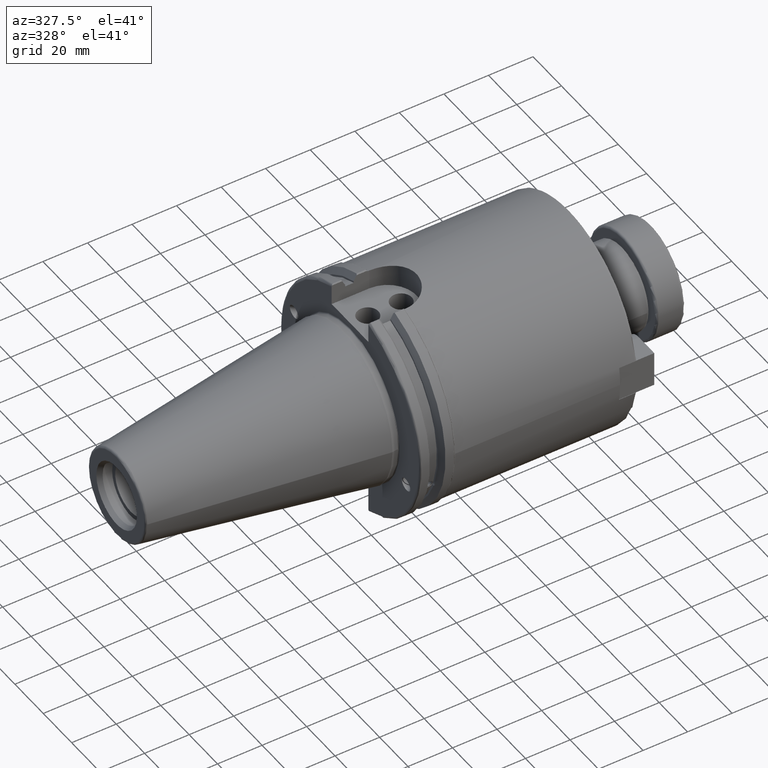
[diagram: clean part render]
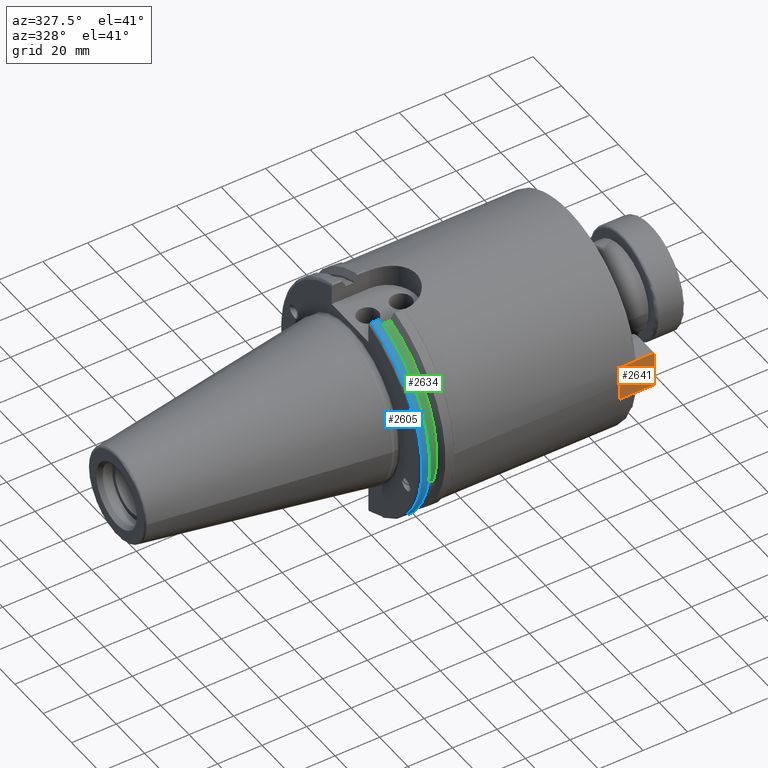
[diagram: same view with three faces highlighted in distinct colors, each labeled with its STEP entity id]
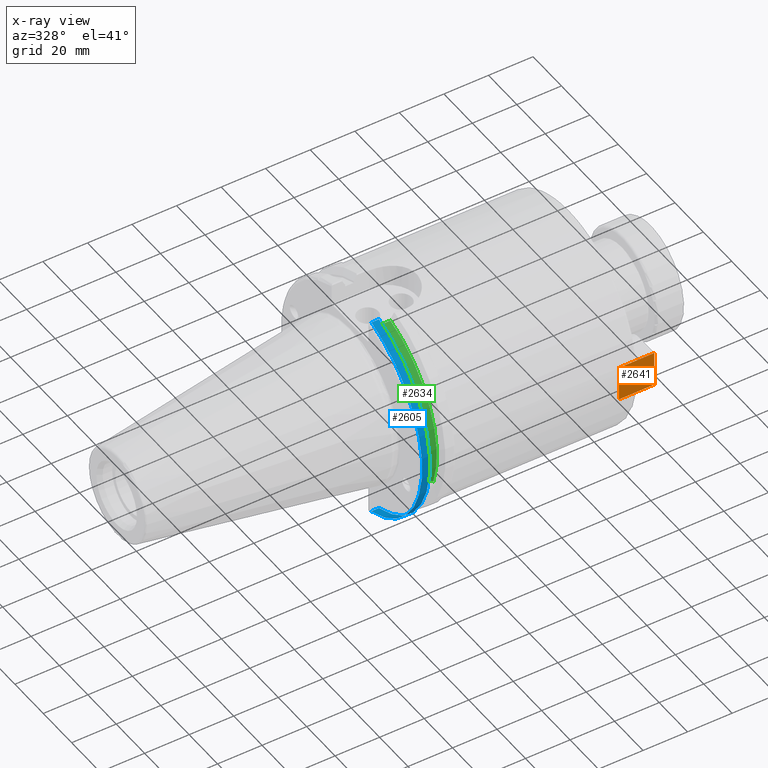
[diagram: x-ray of the same camera — body ghosted, the three highlighted faces saturated]
A machine part, auxiliary view with three faces highlighted in distinct colors.
The next image is the same camera in x-ray (body ghosted, the three faces saturated) — at least one of them is partly hidden behind the body in this view.
Their STEP definitions:

[orange] entity #2641 — the highlighted planar face has unit normal (-0, -1, 0).
#455=FACE_OUTER_BOUND('',#617,.T.);
#617=EDGE_LOOP('',(#2318,#2319,#2320,#2321));
#765=LINE('',#5131,#915);
#766=LINE('',#5134,#916);
#767=LINE('',#5136,#917);
#768=LINE('',#5137,#918);
#915=VECTOR('',#3711,10.);
#916=VECTOR('',#3714,10.);
#917=VECTOR('',#3715,10.);
#918=VECTOR('',#3716,10.);
#1229=VERTEX_POINT('',#5127);
#1230=VERTEX_POINT('',#5129);
#1231=VERTEX_POINT('',#5133);
#1232=VERTEX_POINT('',#5135);
#1603=EDGE_CURVE('',#1229,#1230,#765,.T.);
#1604=EDGE_CURVE('',#1231,#1229,#766,.T.);
#1605=EDGE_CURVE('',#1232,#1230,#767,.T.);
#1606=EDGE_CURVE('',#1231,#1232,#768,.T.);
#2318=ORIENTED_EDGE('',*,*,#1604,.T.);
#2319=ORIENTED_EDGE('',*,*,#1603,.T.);
#2320=ORIENTED_EDGE('',*,*,#1605,.F.);
#2321=ORIENTED_EDGE('',*,*,#1606,.F.);
#2513=PLANE('',#3008);
#2641=ADVANCED_FACE('',(#455),#2513,.T.);
#3008=AXIS2_PLACEMENT_3D('',#5132,#3712,#3713);
#3711=DIRECTION('',(0.,1.,0.));
#3712=DIRECTION('center_axis',(1.39914684892899E-16,0.,-1.));
#3713=DIRECTION('ref_axis',(-1.,0.,-1.39914684892899E-16));
#3714=DIRECTION('',(-1.,0.,-1.39914684892899E-16));
#3715=DIRECTION('',(-1.,0.,-1.39914684892899E-16));
#3716=DIRECTION('',(0.,1.,0.));
#5127=CARTESIAN_POINT('',(-7.935,0.,-10.565));
#5129=CARTESIAN_POINT('',(-7.935,15.87,-10.565));
#5131=CARTESIAN_POINT('',(-7.935,0.,-10.565));
#5132=CARTESIAN_POINT('Origin',(7.935,0.,-10.565));
#5133=CARTESIAN_POINT('',(7.935,0.,-10.565));
#5134=CARTESIAN_POINT('',(7.935,0.,-10.565));
#5135=CARTESIAN_POINT('',(7.935,15.87,-10.565));
#5136=CARTESIAN_POINT('',(7.935,15.87,-10.565));
#5137=CARTESIAN_POINT('',(7.935,0.,-10.565));

[blue] entity #2605 — the highlighted cylindrical surface (partial cylindrical patch) has radius 49.2125 mm, axis along (1, 0, 0).
#101=CYLINDRICAL_SURFACE('',#2936,49.2125);
#272=CIRCLE('',#2934,49.2125);
#273=CIRCLE('',#2937,49.2125);
#419=FACE_OUTER_BOUND('',#576,.T.);
#576=EDGE_LOOP('',(#2135,#2136,#2137,#2138));
#743=LINE('',#4970,#893);
#744=LINE('',#4976,#894);
#893=VECTOR('',#3545,10.);
#894=VECTOR('',#3548,10.);
#1192=VERTEX_POINT('',#4943);
#1193=VERTEX_POINT('',#4952);
#1194=VERTEX_POINT('',#4969);
#1195=VERTEX_POINT('',#4975);
#1536=EDGE_CURVE('',#1192,#1193,#272,.T.);
#1539=EDGE_CURVE('',#1193,#1194,#743,.T.);
#1541=EDGE_CURVE('',#1195,#1192,#744,.T.);
#1542=EDGE_CURVE('',#1194,#1195,#273,.T.);
#2135=ORIENTED_EDGE('',*,*,#1536,.F.);
#2136=ORIENTED_EDGE('',*,*,#1541,.F.);
#2137=ORIENTED_EDGE('',*,*,#1542,.F.);
#2138=ORIENTED_EDGE('',*,*,#1539,.F.);
#2605=ADVANCED_FACE('',(#419),#101,.T.);
#2934=AXIS2_PLACEMENT_3D('',#4953,#3541,#3542);
#2936=AXIS2_PLACEMENT_3D('',#4974,#3546,#3547);
#2937=AXIS2_PLACEMENT_3D('',#4977,#3549,#3550);
#3541=DIRECTION('center_axis',(-1.,0.,0.));
#3542=DIRECTION('ref_axis',(0.,-1.,1.60812264967664E-16));
#3545=DIRECTION('',(1.,0.,0.));
#3546=DIRECTION('center_axis',(1.,0.,0.));
#3547=DIRECTION('ref_axis',(0.,-1.,1.22464679914735E-16));
#3548=DIRECTION('',(-1.,0.,0.));
#3549=DIRECTION('center_axis',(1.,0.,0.));
#3550=DIRECTION('ref_axis',(0.,0.,-1.));
#4943=CARTESIAN_POINT('',(4.175,-13.4317035994433,-47.3440544806494));
#4952=CARTESIAN_POINT('',(4.175,-13.4317035994433,47.3440544806494));
#4953=CARTESIAN_POINT('Origin',(4.175,0.,0.));
#4969=CARTESIAN_POINT('',(7.60799096595127,-13.4317035994433,47.3440544806494));
#4970=CARTESIAN_POINT('',(5.39149548297563,-13.4317035994433,47.3440544806494));
#4974=CARTESIAN_POINT('Origin',(5.39149548297563,0.,0.));
#4975=CARTESIAN_POINT('',(7.60799096595127,-13.4317035994433,-47.3440544806494));
#4976=CARTESIAN_POINT('',(5.39149548297563,-13.4317035994433,-47.3440544806494));
#4977=CARTESIAN_POINT('Origin',(7.60799096595127,0.,0.));

[green] entity #2634 — the highlighted cylindrical surface (partial cylindrical patch) has radius 45.6435 mm, axis along (1, 0, 0).
#108=CYLINDRICAL_SURFACE('',#2991,45.6435);
#298=CIRCLE('',#2990,45.6435);
#299=CIRCLE('',#2992,45.6435);
#448=FACE_OUTER_BOUND('',#609,.T.);
#609=EDGE_LOOP('',(#2289,#2290,#2291,#2292));
#732=LINE('',#4869,#882);
#882=VECTOR('',#3520,10.);
#970=B_SPLINE_CURVE_WITH_KNOTS('',3,(#4418,#4419,#4420,#4421,#4422,#4423,
#4424,#4425,#4426,#4427,#4428,#4429,#4430,#4431),.UNSPECIFIED.,.F.,.F.,
(4,2,2,2,2,2,4),(0.401548312576694,0.474697095495631,0.553813286063442,
0.632929476631254,0.712045667199066,0.791161857766877,0.864310640685815),
 .UNSPECIFIED.);
#1095=VERTEX_POINT('',#4415);
#1096=VERTEX_POINT('',#4417);
#1178=VERTEX_POINT('',#4866);
#1179=VERTEX_POINT('',#4868);
#1408=EDGE_CURVE('',#1096,#1095,#970,.T.);
#1515=EDGE_CURVE('',#1179,#1178,#732,.T.);
#1587=EDGE_CURVE('',#1178,#1096,#298,.T.);
#1588=EDGE_CURVE('',#1179,#1095,#299,.T.);
#2289=ORIENTED_EDGE('',*,*,#1408,.T.);
#2290=ORIENTED_EDGE('',*,*,#1588,.F.);
#2291=ORIENTED_EDGE('',*,*,#1515,.T.);
#2292=ORIENTED_EDGE('',*,*,#1587,.T.);
#2634=ADVANCED_FACE('',(#448),#108,.T.);
#2990=AXIS2_PLACEMENT_3D('',#5095,#3669,#3670);
#2991=AXIS2_PLACEMENT_3D('',#5096,#3671,#3672);
#2992=AXIS2_PLACEMENT_3D('',#5097,#3673,#3674);
#3520=DIRECTION('',(-1.,0.,0.));
#3669=DIRECTION('center_axis',(1.,0.,0.));
#3670=DIRECTION('ref_axis',(0.,0.,-1.));
#3671=DIRECTION('center_axis',(1.,0.,0.));
#3672=DIRECTION('ref_axis',(0.,-0.888619069115281,0.458645996390125));
#3673=DIRECTION('center_axis',(1.,0.,0.));
#3674=DIRECTION('ref_axis',(0.,0.,-1.));
#4415=CARTESIAN_POINT('',(13.0491,-43.1779814500336,-14.7983448449669));
#4417=CARTESIAN_POINT('',(9.2191,-43.1779814500336,-14.7983448449668));
#4418=CARTESIAN_POINT('Ctrl Pts',(9.21910000000002,-43.1779814500336,-14.7983448449669));
#4419=CARTESIAN_POINT('Ctrl Pts',(9.32532177598178,-43.2545173750974,-14.575031576673));
#4420=CARTESIAN_POINT('Ctrl Pts',(9.47680807557666,-43.3223492818373,-14.3712521044637));
#4421=CARTESIAN_POINT('Ctrl Pts',(9.83560503400179,-43.4340904392251,-14.0300988117073));
#4422=CARTESIAN_POINT('Ctrl Pts',(10.0717203280543,-43.4832903960863,-13.8760243976176));
#4423=CARTESIAN_POINT('Ctrl Pts',(10.5891059167872,-43.54802519266,-13.6715068146718));
#4424=CARTESIAN_POINT('Ctrl Pts',(10.870379364774,-43.5636826100883,-13.6211104428929));
#4425=CARTESIAN_POINT('Ctrl Pts',(11.397820635226,-43.5636826100883,-13.6211104428929));
#4426=CARTESIAN_POINT('Ctrl Pts',(11.6790940832128,-43.54802519266,-13.6715068146718));
#4427=CARTESIAN_POINT('Ctrl Pts',(12.1964796719457,-43.4832903960863,-13.8760243976176));
#4428=CARTESIAN_POINT('Ctrl Pts',(12.4325949659982,-43.4340904392251,-14.0300988117073));
#4429=CARTESIAN_POINT('Ctrl Pts',(12.7913919244233,-43.3223492818373,-14.3712521044637));
#4430=CARTESIAN_POINT('Ctrl Pts',(12.9428782240182,-43.2545173750974,-14.5750315766731));
#4431=CARTESIAN_POINT('Ctrl Pts',(13.0491,-43.1779814500336,-14.7983448449669));
#4866=CARTESIAN_POINT('',(9.2191,-12.95,43.7678716897452));
#4868=CARTESIAN_POINT('',(13.0491,-12.95,43.7678716897452));
#4869=CARTESIAN_POINT('',(11.1341,-12.95,43.7678716897452));
#5095=CARTESIAN_POINT('Origin',(9.2191,0.,0.));
#5096=CARTESIAN_POINT('Origin',(11.1341,0.,0.));
#5097=CARTESIAN_POINT('Origin',(13.0491,0.,0.));